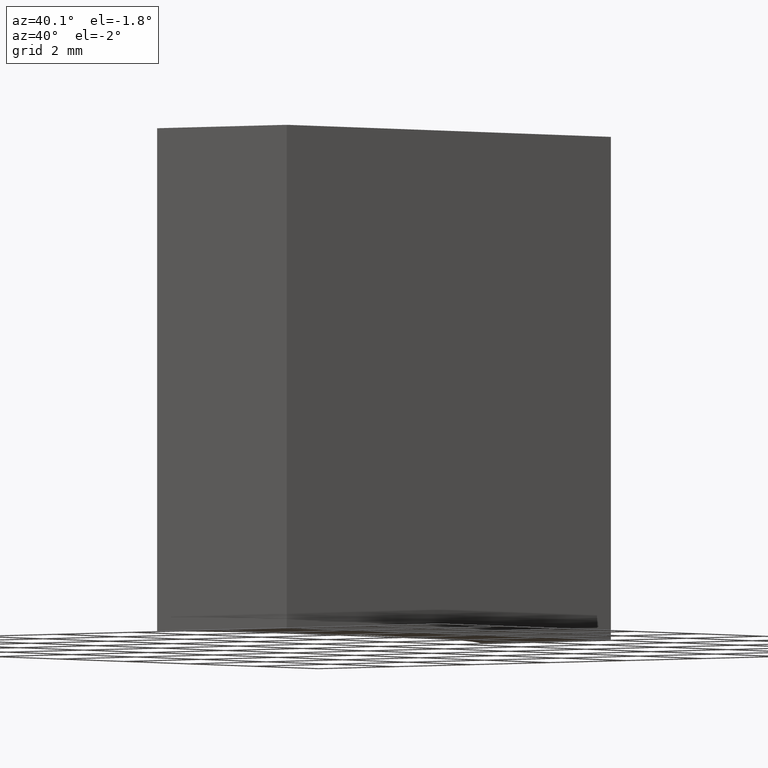
[diagram: clean part render]
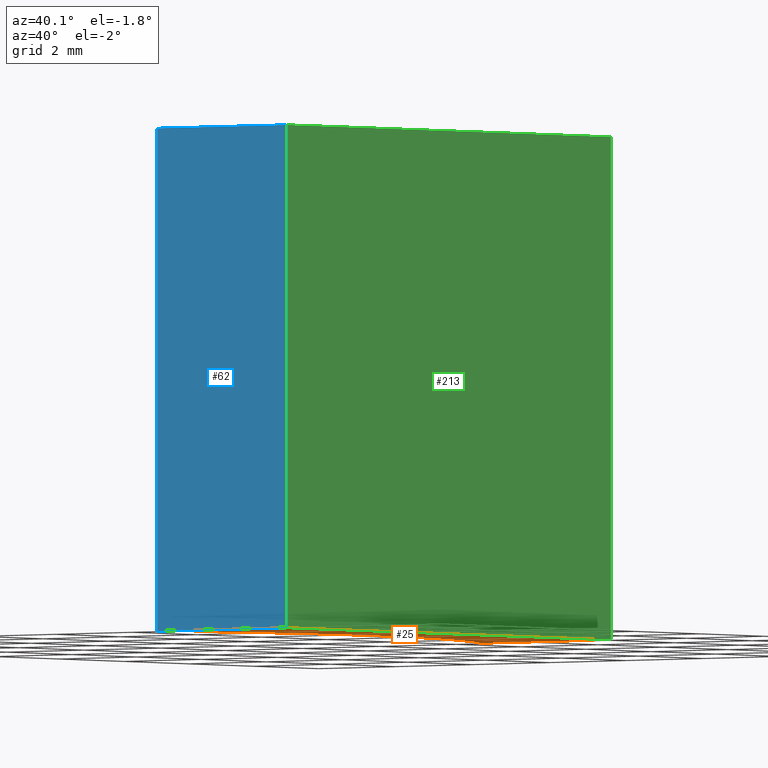
[diagram: same view with three faces highlighted in distinct colors, each labeled with its STEP entity id]
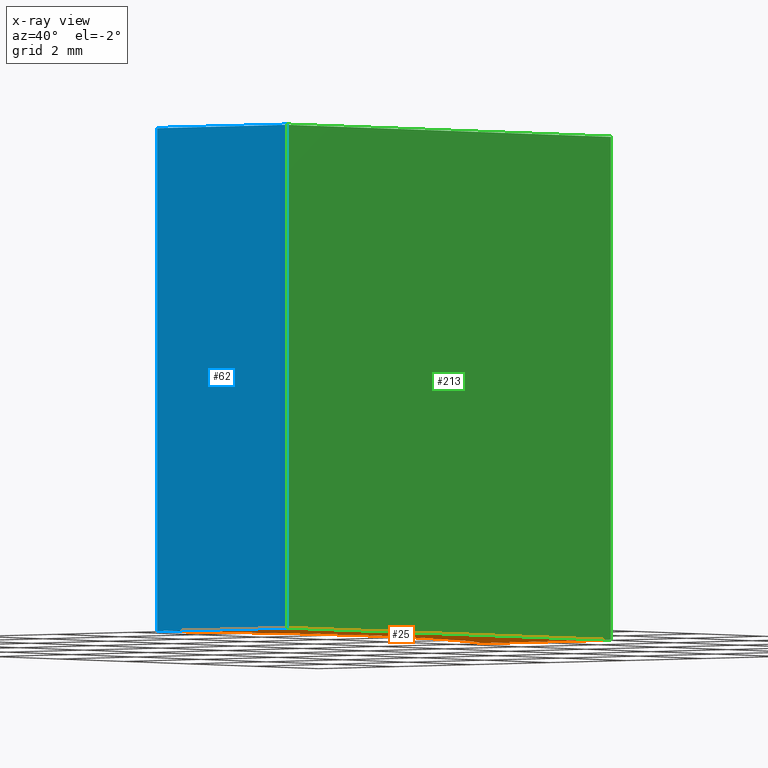
[diagram: x-ray of the same camera — body ghosted, the three highlighted faces saturated]
A machine part, auxiliary view with three faces highlighted in distinct colors.
The next image is the same camera in x-ray (body ghosted, the three faces saturated) — at least one of them is partly hidden behind the body in this view.
Their STEP definitions:

[orange] entity #25 — the highlighted planar face has unit normal (0, 0, 1).
#2 = LINE ( 'NONE', #218, #190 ) ;
#13 = VERTEX_POINT ( 'NONE', #197 ) ;
#20 = VERTEX_POINT ( 'NONE', #78 ) ;
#24 = EDGE_CURVE ( 'NONE', #176, #13, #108, .T. ) ;
#25 = ADVANCED_FACE ( 'NONE', ( #106 ), #185, .F. ) ;
#26 = DIRECTION ( 'NONE',  ( 0.000000000000000000, 0.000000000000000000, 1.000000000000000000 ) ) ;
#33 = EDGE_CURVE ( 'NONE', #13, #20, #80, .T. ) ;
#37 = VERTEX_POINT ( 'NONE', #201 ) ;
#42 = ORIENTED_EDGE ( 'NONE', *, *, #24, .F. ) ;
#45 = DIRECTION ( 'NONE',  ( -0.000000000000000000, -0.000000000000000000, -1.000000000000000000 ) ) ;
#57 = ORIENTED_EDGE ( 'NONE', *, *, #72, .F. ) ;
#69 = VECTOR ( 'NONE', #142, 1000.000000000000000 ) ;
#71 = CARTESIAN_POINT ( 'NONE',  ( -3.618624628560199508, -4.927980699070814374, 0.000000000000000000 ) ) ;
#72 = EDGE_CURVE ( 'NONE', #20, #37, #2, .T. ) ;
#74 = AXIS2_PLACEMENT_3D ( 'NONE', #180, #26, #96 ) ;
#78 = CARTESIAN_POINT ( 'NONE',  ( -0.2486246285602006501, 5.072019300929185626, 0.000000000000000000 ) ) ;
#80 = LINE ( 'NONE', #145, #69 ) ;
#91 = DIRECTION ( 'NONE',  ( -1.000000000000000000, -0.000000000000000000, -0.000000000000000000 ) ) ;
#95 = ORIENTED_EDGE ( 'NONE', *, *, #33, .F. ) ;
#96 = DIRECTION ( 'NONE',  ( 1.000000000000000000, 0.000000000000000000, -0.000000000000000000 ) ) ;
#106 = FACE_OUTER_BOUND ( 'NONE', #192, .T. ) ;
#108 = LINE ( 'NONE', #165, #238 ) ;
#122 = DIRECTION ( 'NONE',  ( 1.000000000000000000, 0.000000000000000000, 0.000000000000000000 ) ) ;
#142 = DIRECTION ( 'NONE',  ( -1.192622389734054877E-16, 1.000000000000000000, -0.000000000000000000 ) ) ;
#145 = CARTESIAN_POINT ( 'NONE',  ( -0.2486246285602006501, 5.072019300929185626, 0.000000000000000000 ) ) ;
#163 = ORIENTED_EDGE ( 'NONE', *, *, #175, .F. ) ;
#165 = CARTESIAN_POINT ( 'NONE',  ( -3.618624628560199508, -4.927980699070814374, 0.000000000000000000 ) ) ;
#167 = CARTESIAN_POINT ( 'NONE',  ( -11.46018059660633703, 0.07201930092918462645, 0.000000000000000000 ) ) ;
#171 = AXIS2_PLACEMENT_3D ( 'NONE', #167, #45, #224 ) ;
#175 = EDGE_CURVE ( 'NONE', #37, #176, #226, .T. ) ;
#176 = VERTEX_POINT ( 'NONE', #71 ) ;
#180 = CARTESIAN_POINT ( 'NONE',  ( -11.46018059660633703, 0.07201930092918462645, 0.000000000000000000 ) ) ;
#185 = PLANE ( 'NONE',  #74 ) ;
#190 = VECTOR ( 'NONE', #91, 1000.000000000000000 ) ;
#192 = EDGE_LOOP ( 'NONE', ( #163, #57, #95, #42 ) ) ;
#197 = CARTESIAN_POINT ( 'NONE',  ( -0.2486246285601994566, -4.927980699070814374, 0.000000000000000000 ) ) ;
#201 = CARTESIAN_POINT ( 'NONE',  ( -3.618624628560200840, 5.072019300929185626, 0.000000000000000000 ) ) ;
#218 = CARTESIAN_POINT ( 'NONE',  ( -3.618624628560200840, 5.072019300929185626, 0.000000000000000000 ) ) ;
#224 = DIRECTION ( 'NONE',  ( 1.000000000000000000, 0.000000000000000000, 0.000000000000000000 ) ) ;
#226 = CIRCLE ( 'NONE', #171, 9.299999999999998934 ) ;
#238 = VECTOR ( 'NONE', #122, 1000.000000000000000 ) ;

[blue] entity #62 — the highlighted planar face has unit normal (0, 1, 0).
#5 = EDGE_CURVE ( 'NONE', #237, #176, #94, .T. ) ;
#9 = CARTESIAN_POINT ( 'NONE',  ( -3.618624628560199508, -4.927980699070814374, 10.00000000000000000 ) ) ;
#12 = DIRECTION ( 'NONE',  ( 1.000000000000000000, 0.000000000000000000, 0.000000000000000000 ) ) ;
#13 = VERTEX_POINT ( 'NONE', #197 ) ;
#17 = PLANE ( 'NONE',  #30 ) ;
#19 = CARTESIAN_POINT ( 'NONE',  ( -3.618624628560199508, -4.927980699070814374, 10.00000000000000000 ) ) ;
#24 = EDGE_CURVE ( 'NONE', #176, #13, #108, .T. ) ;
#30 = AXIS2_PLACEMENT_3D ( 'NONE', #182, #99, #89 ) ;
#40 = DIRECTION ( 'NONE',  ( -0.000000000000000000, -0.000000000000000000, -1.000000000000000000 ) ) ;
#58 = EDGE_LOOP ( 'NONE', ( #79, #87, #128, #92 ) ) ;
#62 = ADVANCED_FACE ( 'NONE', ( #143 ), #17, .F. ) ;
#65 = LINE ( 'NONE', #132, #105 ) ;
#71 = CARTESIAN_POINT ( 'NONE',  ( -3.618624628560199508, -4.927980699070814374, 0.000000000000000000 ) ) ;
#79 = ORIENTED_EDGE ( 'NONE', *, *, #24, .T. ) ;
#82 = CARTESIAN_POINT ( 'NONE',  ( -3.618624628560199508, -4.927980699070814374, 10.00000000000000000 ) ) ;
#87 = ORIENTED_EDGE ( 'NONE', *, *, #208, .F. ) ;
#89 = DIRECTION ( 'NONE',  ( 0.000000000000000000, -0.000000000000000000, 1.000000000000000000 ) ) ;
#92 = ORIENTED_EDGE ( 'NONE', *, *, #5, .T. ) ;
#94 = LINE ( 'NONE', #19, #177 ) ;
#99 = DIRECTION ( 'NONE',  ( 0.000000000000000000, 1.000000000000000000, 0.000000000000000000 ) ) ;
#105 = VECTOR ( 'NONE', #150, 1000.000000000000000 ) ;
#108 = LINE ( 'NONE', #165, #238 ) ;
#120 = VECTOR ( 'NONE', #12, 1000.000000000000000 ) ;
#122 = DIRECTION ( 'NONE',  ( 1.000000000000000000, 0.000000000000000000, 0.000000000000000000 ) ) ;
#128 = ORIENTED_EDGE ( 'NONE', *, *, #212, .F. ) ;
#132 = CARTESIAN_POINT ( 'NONE',  ( -0.2486246285601994566, -4.927980699070814374, 10.00000000000000000 ) ) ;
#134 = LINE ( 'NONE', #82, #120 ) ;
#143 = FACE_OUTER_BOUND ( 'NONE', #58, .T. ) ;
#150 = DIRECTION ( 'NONE',  ( -0.000000000000000000, -0.000000000000000000, -1.000000000000000000 ) ) ;
#165 = CARTESIAN_POINT ( 'NONE',  ( -3.618624628560199508, -4.927980699070814374, 0.000000000000000000 ) ) ;
#176 = VERTEX_POINT ( 'NONE', #71 ) ;
#177 = VECTOR ( 'NONE', #40, 1000.000000000000000 ) ;
#182 = CARTESIAN_POINT ( 'NONE',  ( -3.618624628560199508, -4.927980699070814374, 10.00000000000000000 ) ) ;
#197 = CARTESIAN_POINT ( 'NONE',  ( -0.2486246285601994566, -4.927980699070814374, 0.000000000000000000 ) ) ;
#207 = CARTESIAN_POINT ( 'NONE',  ( -0.2486246285601994566, -4.927980699070814374, 10.00000000000000000 ) ) ;
#208 = EDGE_CURVE ( 'NONE', #230, #13, #65, .T. ) ;
#212 = EDGE_CURVE ( 'NONE', #237, #230, #134, .T. ) ;
#230 = VERTEX_POINT ( 'NONE', #207 ) ;
#237 = VERTEX_POINT ( 'NONE', #9 ) ;
#238 = VECTOR ( 'NONE', #122, 1000.000000000000000 ) ;

[green] entity #213 — the highlighted planar face has unit normal (-1, -0, 0).
#11 = VECTOR ( 'NONE', #217, 1000.000000000000000 ) ;
#13 = VERTEX_POINT ( 'NONE', #197 ) ;
#18 = ORIENTED_EDGE ( 'NONE', *, *, #173, .F. ) ;
#20 = VERTEX_POINT ( 'NONE', #78 ) ;
#23 = ORIENTED_EDGE ( 'NONE', *, *, #208, .T. ) ;
#28 = DIRECTION ( 'NONE',  ( -1.192622389734054877E-16, 1.000000000000000000, -0.000000000000000000 ) ) ;
#32 = ORIENTED_EDGE ( 'NONE', *, *, #33, .T. ) ;
#33 = EDGE_CURVE ( 'NONE', #13, #20, #80, .T. ) ;
#43 = LINE ( 'NONE', #126, #11 ) ;
#51 = FACE_OUTER_BOUND ( 'NONE', #127, .T. ) ;
#59 = LINE ( 'NONE', #125, #179 ) ;
#65 = LINE ( 'NONE', #132, #105 ) ;
#69 = VECTOR ( 'NONE', #142, 1000.000000000000000 ) ;
#78 = CARTESIAN_POINT ( 'NONE',  ( -0.2486246285602006501, 5.072019300929185626, 0.000000000000000000 ) ) ;
#80 = LINE ( 'NONE', #145, #69 ) ;
#81 = VERTEX_POINT ( 'NONE', #140 ) ;
#98 = ORIENTED_EDGE ( 'NONE', *, *, #113, .F. ) ;
#105 = VECTOR ( 'NONE', #150, 1000.000000000000000 ) ;
#113 = EDGE_CURVE ( 'NONE', #81, #20, #43, .T. ) ;
#117 = CARTESIAN_POINT ( 'NONE',  ( -0.2486246285602006501, 5.072019300929185626, 10.00000000000000000 ) ) ;
#125 = CARTESIAN_POINT ( 'NONE',  ( -0.2486246285602006501, 5.072019300929185626, 10.00000000000000000 ) ) ;
#126 = CARTESIAN_POINT ( 'NONE',  ( -0.2486246285602006501, 5.072019300929185626, 10.00000000000000000 ) ) ;
#127 = EDGE_LOOP ( 'NONE', ( #32, #98, #18, #23 ) ) ;
#132 = CARTESIAN_POINT ( 'NONE',  ( -0.2486246285601994566, -4.927980699070814374, 10.00000000000000000 ) ) ;
#136 = AXIS2_PLACEMENT_3D ( 'NONE', #117, #206, #169 ) ;
#140 = CARTESIAN_POINT ( 'NONE',  ( -0.2486246285602006501, 5.072019300929185626, 10.00000000000000000 ) ) ;
#142 = DIRECTION ( 'NONE',  ( -1.192622389734054877E-16, 1.000000000000000000, -0.000000000000000000 ) ) ;
#145 = CARTESIAN_POINT ( 'NONE',  ( -0.2486246285602006501, 5.072019300929185626, 0.000000000000000000 ) ) ;
#150 = DIRECTION ( 'NONE',  ( -0.000000000000000000, -0.000000000000000000, -1.000000000000000000 ) ) ;
#153 = PLANE ( 'NONE',  #136 ) ;
#169 = DIRECTION ( 'NONE',  ( 1.192622389734054877E-16, -1.000000000000000000, 0.000000000000000000 ) ) ;
#173 = EDGE_CURVE ( 'NONE', #230, #81, #59, .T. ) ;
#179 = VECTOR ( 'NONE', #28, 1000.000000000000000 ) ;
#197 = CARTESIAN_POINT ( 'NONE',  ( -0.2486246285601994566, -4.927980699070814374, 0.000000000000000000 ) ) ;
#206 = DIRECTION ( 'NONE',  ( -1.000000000000000000, -1.192622389734054877E-16, 0.000000000000000000 ) ) ;
#207 = CARTESIAN_POINT ( 'NONE',  ( -0.2486246285601994566, -4.927980699070814374, 10.00000000000000000 ) ) ;
#208 = EDGE_CURVE ( 'NONE', #230, #13, #65, .T. ) ;
#213 = ADVANCED_FACE ( 'NONE', ( #51 ), #153, .F. ) ;
#217 = DIRECTION ( 'NONE',  ( -0.000000000000000000, -0.000000000000000000, -1.000000000000000000 ) ) ;
#230 = VERTEX_POINT ( 'NONE', #207 ) ;